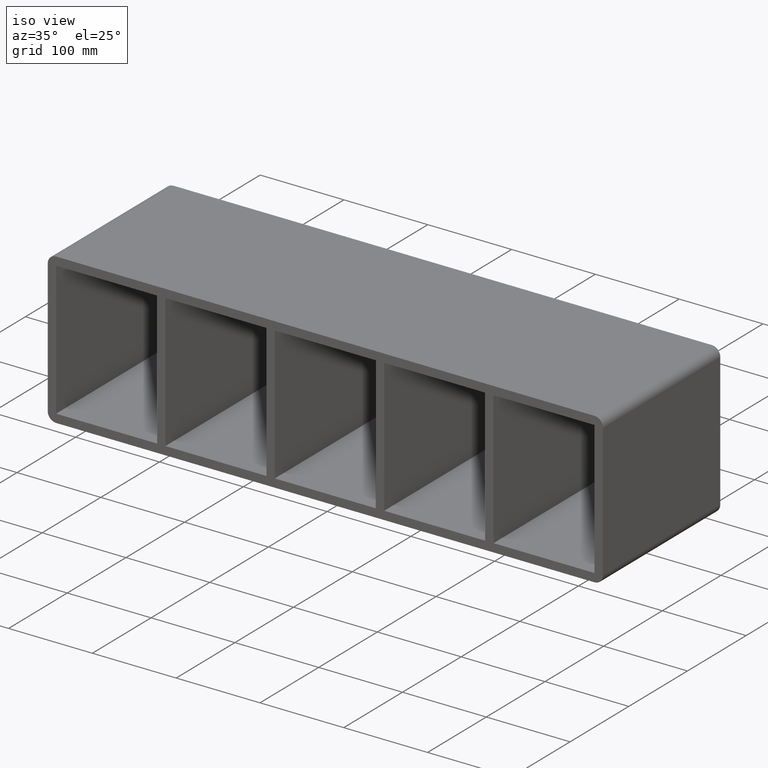
[diagram: clean part render]
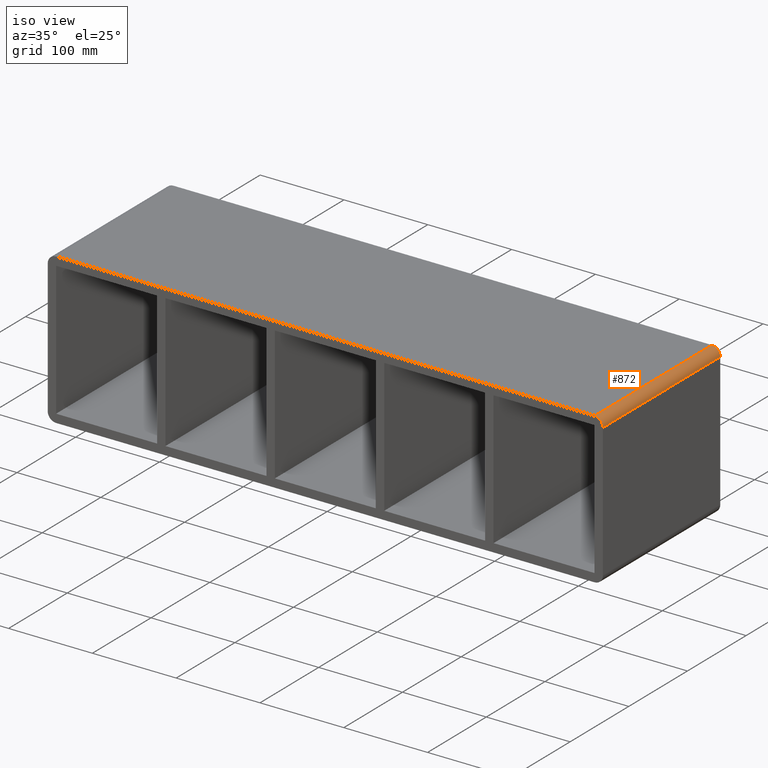
[diagram: same view with one face highlighted and labeled with its STEP entity id]
A machine part, iso view. The second image highlights one B-rep face of the part: STEP entity #872.
In plain terms, the highlighted cylindrical surface (edge-blend (fillet) strip) has radius 10 mm, axis along (0, -1, 0).
Its self-contained STEP definition (entity closure, byte-faithful):
#709=CARTESIAN_POINT('',(331.25,-3.0,79.750000000000028));
#710=VERTEX_POINT('',#709);
#717=CARTESIAN_POINT('',(321.25,-3.0,89.750000000000028));
#718=VERTEX_POINT('',#717);
#719=CARTESIAN_POINT('',(321.25,-3.0,79.750000000000028));
#720=DIRECTION('',(0.0,1.0,0.0));
#721=DIRECTION('',(0.707106781186547,0.0,0.707106781186547));
#722=AXIS2_PLACEMENT_3D('',#719,#720,#721);
#723=CIRCLE('',#722,9.999999999999998);
#724=EDGE_CURVE('',#718,#710,#723,.T.);
#841=CARTESIAN_POINT('',(321.25,0.0,79.750000000000028));
#842=DIRECTION('',(0.0,-1.0,0.0));
#843=DIRECTION('',(0.707106781186547,0.0,0.707106781186547));
#844=AXIS2_PLACEMENT_3D('',#841,#842,#843);
#845=CYLINDRICAL_SURFACE('',#844,10.0);
#846=ORIENTED_EDGE('',*,*,#724,.T.);
#847=CARTESIAN_POINT('',(331.25,197.0,79.750000000000028));
#848=VERTEX_POINT('',#847);
#849=CARTESIAN_POINT('',(331.25,-3.0,79.750000000000028));
#850=DIRECTION('',(0.0,1.0,0.0));
#851=VECTOR('',#850,200.0);
#852=LINE('',#849,#851);
#853=EDGE_CURVE('',#710,#848,#852,.T.);
#854=ORIENTED_EDGE('',*,*,#853,.T.);
#855=CARTESIAN_POINT('',(321.25,197.0,89.750000000000028));
#856=VERTEX_POINT('',#855);
#857=CARTESIAN_POINT('',(321.25,197.0,79.750000000000028));
#858=DIRECTION('',(0.0,-1.0,0.0));
#859=DIRECTION('',(0.707106781186547,0.0,0.707106781186547));
#860=AXIS2_PLACEMENT_3D('',#857,#858,#859);
#861=CIRCLE('',#860,9.999999999999998);
#862=EDGE_CURVE('',#848,#856,#861,.T.);
#863=ORIENTED_EDGE('',*,*,#862,.T.);
#864=CARTESIAN_POINT('',(321.25,197.0,89.750000000000028));
#865=DIRECTION('',(0.0,-1.0,0.0));
#866=VECTOR('',#865,200.0);
#867=LINE('',#864,#866);
#868=EDGE_CURVE('',#856,#718,#867,.T.);
#869=ORIENTED_EDGE('',*,*,#868,.T.);
#870=EDGE_LOOP('',(#846,#854,#863,#869));
#871=FACE_OUTER_BOUND('',#870,.T.);
#872=ADVANCED_FACE('',(#871),#845,.T.);